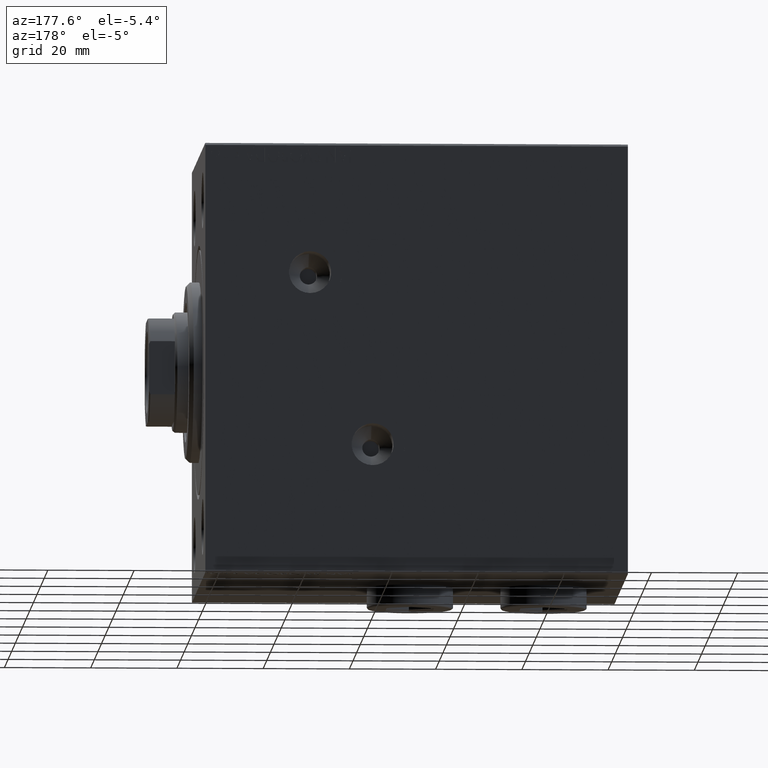
[diagram: clean part render]
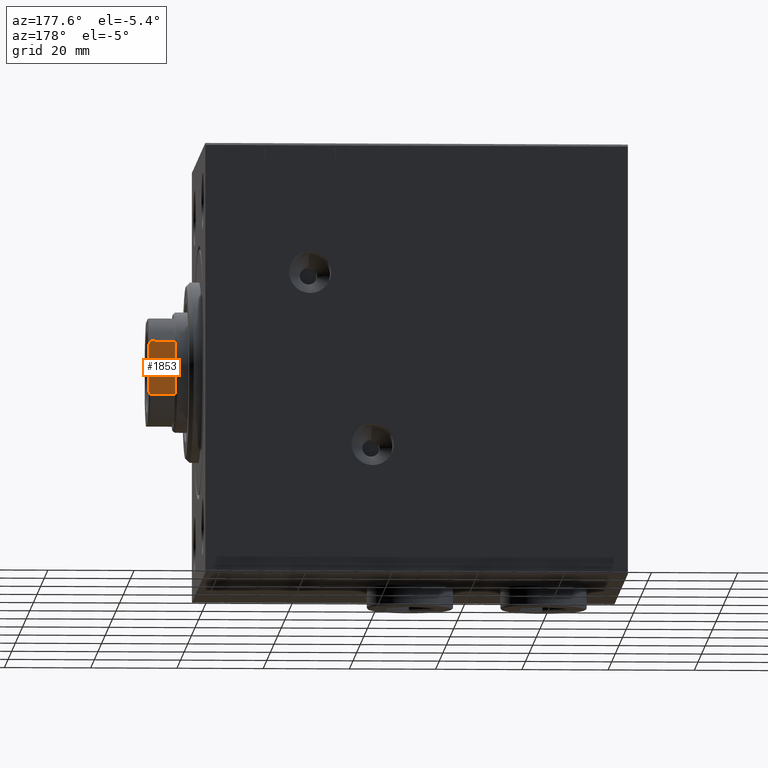
[diagram: same view with one face highlighted and labeled with its STEP entity id]
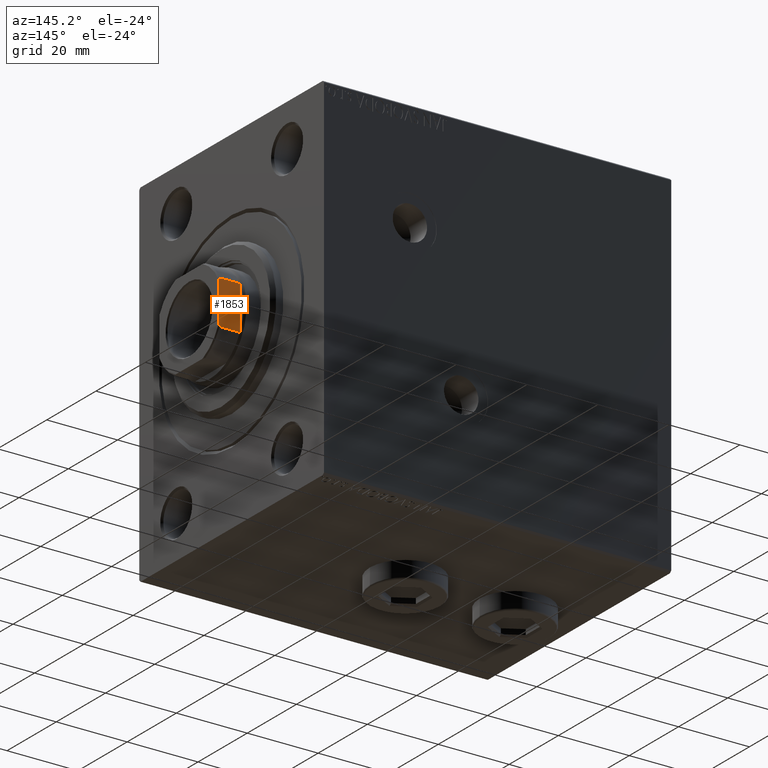
[diagram: same view with one face highlighted and labeled with its STEP entity id]
A machine part, auxiliary view. The second image highlights one B-rep face of the part: STEP entity #1853.
A second angle (auxiliary view) of the same face is appended — the face is thin or edge-on in the first view.
In plain terms, the highlighted planar face has unit normal (0, -1, 0).
Its self-contained STEP definition (entity closure, byte-faithful):
#192 = EDGE_CURVE ( 'NONE', #44856, #22653, #11444, .T. ) ;
#666 = CARTESIAN_POINT ( 'NONE',  ( -12.00000000000000178, 12.00000000000000000, 90.00000000000000000 ) ) ;
#1853 = ADVANCED_FACE ( 'NONE', ( #14518 ), #3740, .F. ) ;
#3133 = EDGE_CURVE ( 'NONE', #28340, #35087, #42990, .T. ) ;
#3740 = PLANE ( 'NONE',  #18713 ) ;
#6756 = CARTESIAN_POINT ( 'NONE',  ( 5.499090833947040124, 12.00000000000000000, 96.00000000000000000 ) ) ;
#8177 = VECTOR ( 'NONE', #25717, 1000.000000000000000 ) ;
#10687 = VECTOR ( 'NONE', #31623, 1000.000000000000000 ) ;
#11140 = CARTESIAN_POINT ( 'NONE',  ( -5.729389212963449829, 12.00000000000000000, 95.90405820415740834 ) ) ;
#11444 = LINE ( 'NONE', #666, #8177 ) ;
#11626 = LINE ( 'NONE', #15130, #32028 ) ;
#12436 = CARTESIAN_POINT ( 'NONE',  ( 6.184658438426490434, 11.99999999999999822, 95.70000000000001705 ) ) ;
#12447 = CARTESIAN_POINT ( 'NONE',  ( 6.184658438426492211, 12.00000000000000178, 89.99999999999998579 ) ) ;
#12831 = CARTESIAN_POINT ( 'NONE',  ( -6.184658438426489546, 12.00000000000000000, 89.99999999999998579 ) ) ;
#14184 = CARTESIAN_POINT ( 'NONE',  ( -5.957846001622716159, 12.00000000000000000, 95.80390795934953019 ) ) ;
#14518 = FACE_OUTER_BOUND ( 'NONE', #39261, .T. ) ;
#15130 = CARTESIAN_POINT ( 'NONE',  ( -6.184658438426490434, 12.00000000000000000, -0.001000000000001000089 ) ) ;
#15682 = ORIENTED_EDGE ( 'NONE', *, *, #27310, .T. ) ;
#17762 = ORIENTED_EDGE ( 'NONE', *, *, #192, .T. ) ;
#18628 = CARTESIAN_POINT ( 'NONE',  ( -6.184658438426490434, 12.00000000000000000, 95.69999999999998863 ) ) ;
#18713 = AXIS2_PLACEMENT_3D ( 'NONE', #28540, #28779, #46094 ) ;
#19943 = EDGE_CURVE ( 'NONE', #28340, #40591, #43280, .T. ) ;
#20654 = CARTESIAN_POINT ( 'NONE',  ( 6.184658438426490434, 11.99999999999999822, -0.001000000000001000089 ) ) ;
#21044 = CARTESIAN_POINT ( 'NONE',  ( 5.729389212963461375, 12.00000000000000000, 95.90405820415742255 ) ) ;
#21195 = CARTESIAN_POINT ( 'NONE',  ( -5.499090833947023249, 12.00000000000000000, 96.00000000000000000 ) ) ;
#21392 = ORIENTED_EDGE ( 'NONE', *, *, #30322, .T. ) ;
#22653 = VERTEX_POINT ( 'NONE', #12831 ) ;
#25717 = DIRECTION ( 'NONE',  ( -1.000000000000000000, -0.000000000000000000, -0.000000000000000000 ) ) ;
#26038 = CARTESIAN_POINT ( 'NONE',  ( -6.184658438426490434, 12.00000000000000000, 95.69999999999998863 ) ) ;
#26344 = DIRECTION ( 'NONE',  ( -0.000000000000000000, -0.000000000000000000, 1.000000000000000000 ) ) ;
#27310 = EDGE_CURVE ( 'NONE', #27607, #35087, #37855, .T. ) ;
#27420 = LINE ( 'NONE', #20654, #10687 ) ;
#27605 = CARTESIAN_POINT ( 'NONE',  ( 5.499090833947040124, 12.00000000000000000, 96.00000000000000000 ) ) ;
#27607 = VERTEX_POINT ( 'NONE', #26038 ) ;
#28340 = VERTEX_POINT ( 'NONE', #27605 ) ;
#28540 = CARTESIAN_POINT ( 'NONE',  ( -12.00000000000000178, 12.00000000000000000, 96.00000000000000000 ) ) ;
#28731 = DIRECTION ( 'NONE',  ( -1.000000000000000000, -0.000000000000000000, -0.000000000000000000 ) ) ;
#28779 = DIRECTION ( 'NONE',  ( 0.000000000000000000, -1.000000000000000000, 0.000000000000000000 ) ) ;
#29188 = VECTOR ( 'NONE', #28731, 1000.000000000000000 ) ;
#30322 = EDGE_CURVE ( 'NONE', #22653, #27607, #11626, .T. ) ;
#31623 = DIRECTION ( 'NONE',  ( -0.000000000000000000, -0.000000000000000000, 1.000000000000000000 ) ) ;
#31792 = CARTESIAN_POINT ( 'NONE',  ( 5.957846001622718823, 12.00000000000000000, 95.80390795934954440 ) ) ;
#32028 = VECTOR ( 'NONE', #26344, 1000.000000000000000 ) ;
#33580 = ORIENTED_EDGE ( 'NONE', *, *, #3133, .F. ) ;
#34441 = ORIENTED_EDGE ( 'NONE', *, *, #19943, .T. ) ;
#35087 = VERTEX_POINT ( 'NONE', #21195 ) ;
#35304 = CARTESIAN_POINT ( 'NONE',  ( 6.184658438426490434, 11.99999999999999822, 95.70000000000001705 ) ) ;
#37855 = B_SPLINE_CURVE_WITH_KNOTS ( 'NONE', 3,
 ( #18628, #14184, #11140, #39444 ),
 .UNSPECIFIED., .F., .F.,
 ( 4, 4 ),
 ( 0.000000000000000000, 0.0007483334419306143966 ),
 .UNSPECIFIED. ) ;
#39261 = EDGE_LOOP ( 'NONE', ( #33580, #34441, #43010, #17762, #21392, #15682 ) ) ;
#39444 = CARTESIAN_POINT ( 'NONE',  ( -5.499090833947023249, 12.00000000000000000, 96.00000000000000000 ) ) ;
#39718 = CARTESIAN_POINT ( 'NONE',  ( -12.00000000000000178, 12.00000000000000000, 96.00000000000000000 ) ) ;
#40591 = VERTEX_POINT ( 'NONE', #12436 ) ;
#42990 = LINE ( 'NONE', #39718, #29188 ) ;
#43010 = ORIENTED_EDGE ( 'NONE', *, *, #45104, .F. ) ;
#43280 = B_SPLINE_CURVE_WITH_KNOTS ( 'NONE', 3,
 ( #6756, #21044, #31792, #35304 ),
 .UNSPECIFIED., .F., .F.,
 ( 4, 4 ),
 ( 8.673617379884035472E-19, 0.0007483334419305873999 ),
 .UNSPECIFIED. ) ;
#44856 = VERTEX_POINT ( 'NONE', #12447 ) ;
#45104 = EDGE_CURVE ( 'NONE', #44856, #40591, #27420, .T. ) ;
#46094 = DIRECTION ( 'NONE',  ( 0.000000000000000000, -0.000000000000000000, -1.000000000000000000 ) ) ;